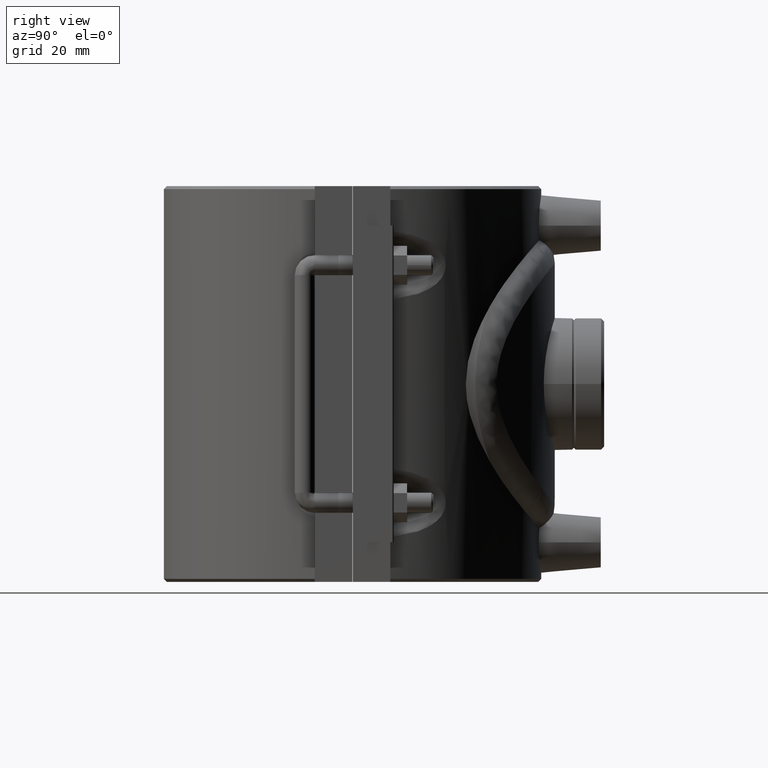
[diagram: clean part render]
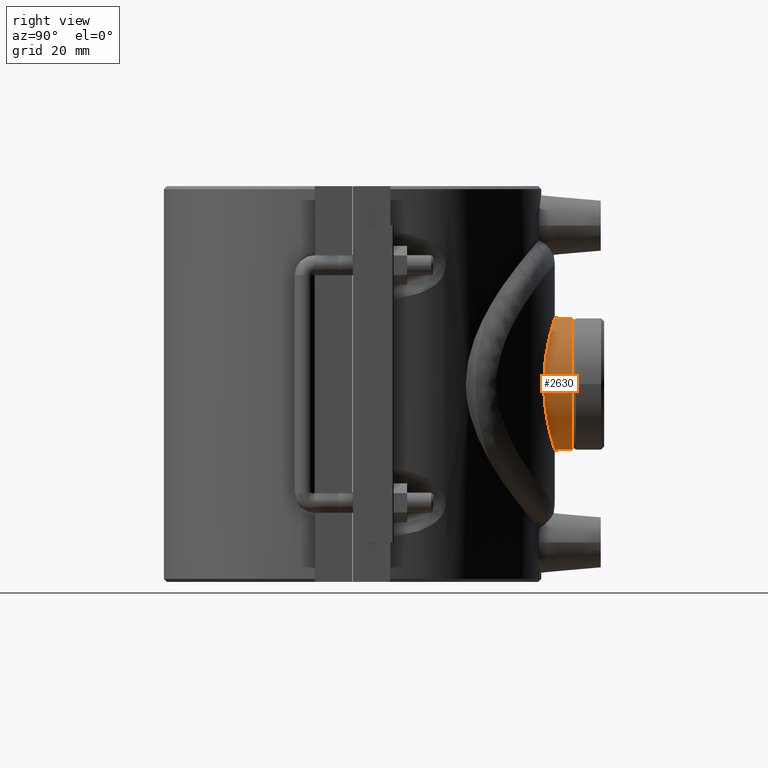
[diagram: same view with one face highlighted and labeled with its STEP entity id]
A machine part, right view. The second image highlights one B-rep face of the part: STEP entity #2630.
In plain terms, the highlighted cylindrical surface (bore or boss wall) has radius 19.6892 mm, axis along (0, -1, 0).
Its self-contained STEP definition (entity closure, byte-faithful):
#88=CYLINDRICAL_SURFACE('',#2851,19.68915);
#137=FACE_BOUND('',#524,.T.);
#210=B_SPLINE_CURVE_WITH_KNOTS('',3,(#5490,#5491,#5492,#5493,#5494,#5495,
#5496,#5497,#5498,#5499,#5500,#5501,#5502,#5503,#5504,#5505,#5506,#5507,
#5508,#5509,#5510,#5511,#5512,#5513,#5514,#5515,#5516,#5517,#5518,#5519,
#5520,#5521,#5522,#5523,#5524,#5525,#5526,#5527,#5528,#5529,#5530,#5531,
#5532,#5533,#5534,#5535,#5536,#5537,#5538,#5539,#5540,#5541,#5542,#5543,
#5544,#5545,#5546,#5547,#5548,#5549,#5550,#5551,#5552,#5553,#5554,#5555),
 .UNSPECIFIED.,.T.,.F.,(4,2,2,2,2,2,2,2,2,2,2,2,2,2,2,2,2,2,2,2,2,2,2,2,
2,2,2,2,2,2,2,2,4),(0.,0.373892604560124,0.747785209120248,1.12167781368037,
1.4955704182405,1.86930408582334,2.24303775340618,2.61677142098903,2.99050508857187,
3.36423875615471,3.73797242373756,4.1117060913204,4.48543975890324,4.85933236346337,
5.23322496802349,5.60711757258362,5.98101017714374,6.35490278170387,6.72879538626399,
7.10268799082411,7.47658059538424,7.85031426296708,8.22404793054993,8.59778159813277,
8.97151526571561,9.34524893329846,9.7189826008813,10.0927162684641,10.466449936047,
10.8403425406071,11.2142351451672,11.5881277497274,11.9620203542875),
 .UNSPECIFIED.);
#331=FACE_OUTER_BOUND('',#523,.T.);
#523=EDGE_LOOP('',(#2271));
#524=EDGE_LOOP('',(#2272));
#1049=CIRCLE('',#2850,19.68915);
#1297=VERTEX_POINT('',#5486);
#1298=VERTEX_POINT('',#5489);
#1645=EDGE_CURVE('',#1297,#1297,#1049,.T.);
#1646=EDGE_CURVE('',#1298,#1298,#210,.T.);
#2271=ORIENTED_EDGE('',*,*,#1646,.F.);
#2272=ORIENTED_EDGE('',*,*,#1645,.F.);
#2630=ADVANCED_FACE('',(#331,#137),#88,.T.);
#2850=AXIS2_PLACEMENT_3D('',#5487,#3439,#3440);
#2851=AXIS2_PLACEMENT_3D('',#5488,#3441,#3442);
#3439=DIRECTION('center_axis',(0.,1.,0.));
#3440=DIRECTION('ref_axis',(-1.,0.,0.));
#3441=DIRECTION('center_axis',(0.,-1.,0.));
#3442=DIRECTION('ref_axis',(1.,0.,0.));
#5486=CARTESIAN_POINT('',(19.68915,65.45,-2.41122545254321E-15));
#5487=CARTESIAN_POINT('Origin',(0.,65.45,0.));
#5488=CARTESIAN_POINT('Origin',(0.,75.,0.));
#5489=CARTESIAN_POINT('',(-19.68915,56.9949767284583,1.77635683940025E-14));
#5490=CARTESIAN_POINT('Ctrl Pts',(-19.68915,56.9949767284583,-5.55111512312578E-16));
#5491=CARTESIAN_POINT('Ctrl Pts',(-19.68915,56.9949767284583,-1.24630868186708));
#5492=CARTESIAN_POINT('Ctrl Pts',(-19.5689100007069,57.0369898415839,-2.53196162237905));
#5493=CARTESIAN_POINT('Ctrl Pts',(-19.066043277251,57.2070488878396,-5.08321375971234));
#5494=CARTESIAN_POINT('Ctrl Pts',(-18.6835598969032,57.3349253157906,-6.34885250417827));
#5495=CARTESIAN_POINT('Ctrl Pts',(-17.6762012422306,57.6534557055359,-8.77127582845449));
#5496=CARTESIAN_POINT('Ctrl Pts',(-17.0505268018416,57.8440209367251,-9.93016443508014));
#5497=CARTESIAN_POINT('Ctrl Pts',(-15.6082151361396,58.2497625963666,-12.0711329339014));
#5498=CARTESIAN_POINT('Ctrl Pts',(-14.7914547875944,58.464525785083,-13.0532081740038));
#5499=CARTESIAN_POINT('Ctrl Pts',(-13.0535776272361,58.8769168937985,-14.7910853343621));
#5500=CARTESIAN_POINT('Ctrl Pts',(-12.0716770470252,59.0893401129538,-15.6078014452203));
#5501=CARTESIAN_POINT('Ctrl Pts',(-9.93060911993242,59.4866245823726,-17.0502743449621));
#5502=CARTESIAN_POINT('Ctrl Pts',(-8.77144628551118,59.6711225206843,-17.6761378698744));
#5503=CARTESIAN_POINT('Ctrl Pts',(-6.34847723008043,59.9773121238302,-18.683708441306));
#5504=CARTESIAN_POINT('Ctrl Pts',(-5.08257524567845,60.099012181773,-19.06621567545));
#5505=CARTESIAN_POINT('Ctrl Pts',(-2.53124282111008,60.2604069529413,-19.5690051125285));
#5506=CARTESIAN_POINT('Ctrl Pts',(-1.24577889194282,60.3,-19.68915));
#5507=CARTESIAN_POINT('Ctrl Pts',(1.24577889194281,60.3,-19.68915));
#5508=CARTESIAN_POINT('Ctrl Pts',(2.53124282111006,60.2604069529414,-19.5690051125285));
#5509=CARTESIAN_POINT('Ctrl Pts',(5.08257524567843,60.099012181773,-19.06621567545));
#5510=CARTESIAN_POINT('Ctrl Pts',(6.34847723008042,59.9773121238302,-18.683708441306));
#5511=CARTESIAN_POINT('Ctrl Pts',(8.77144628551116,59.6711225206843,-17.6761378698744));
#5512=CARTESIAN_POINT('Ctrl Pts',(9.9306091199324,59.4866245823726,-17.0502743449622));
#5513=CARTESIAN_POINT('Ctrl Pts',(12.0716770470252,59.0893401129538,-15.6078014452204));
#5514=CARTESIAN_POINT('Ctrl Pts',(13.0535776272361,58.8769168937985,-14.7910853343622));
#5515=CARTESIAN_POINT('Ctrl Pts',(14.7914547875944,58.464525785083,-13.0532081740039));
#5516=CARTESIAN_POINT('Ctrl Pts',(15.6082151361395,58.2497625963666,-12.0711329339014));
#5517=CARTESIAN_POINT('Ctrl Pts',(17.0505268018416,57.8440209367251,-9.93016443508016));
#5518=CARTESIAN_POINT('Ctrl Pts',(17.6762012422306,57.6534557055359,-8.7712758284545));
#5519=CARTESIAN_POINT('Ctrl Pts',(18.6835598969032,57.3349253157906,-6.34885250417828));
#5520=CARTESIAN_POINT('Ctrl Pts',(19.066043277251,57.2070488878396,-5.08321375971235));
#5521=CARTESIAN_POINT('Ctrl Pts',(19.5689100007069,57.0369898415839,-2.53196162237905));
#5522=CARTESIAN_POINT('Ctrl Pts',(19.68915,56.9949767284583,-1.24630868186708));
#5523=CARTESIAN_POINT('Ctrl Pts',(19.68915,56.9949767284583,1.24630868186708));
#5524=CARTESIAN_POINT('Ctrl Pts',(19.5689100007069,57.0369898415839,2.53196162237905));
#5525=CARTESIAN_POINT('Ctrl Pts',(19.066043277251,57.2070488878396,5.08321375971234));
#5526=CARTESIAN_POINT('Ctrl Pts',(18.6835598969032,57.3349253157906,6.34885250417826));
#5527=CARTESIAN_POINT('Ctrl Pts',(17.6762012422306,57.6534557055359,8.77127582845448));
#5528=CARTESIAN_POINT('Ctrl Pts',(17.0505268018416,57.8440209367251,9.93016443508013));
#5529=CARTESIAN_POINT('Ctrl Pts',(15.6082151361396,58.2497625963666,12.0711329339013));
#5530=CARTESIAN_POINT('Ctrl Pts',(14.7914547875944,58.464525785083,13.0532081740038));
#5531=CARTESIAN_POINT('Ctrl Pts',(13.0535776272361,58.8769168937985,14.7910853343621));
#5532=CARTESIAN_POINT('Ctrl Pts',(12.0716770470253,59.0893401129538,15.6078014452203));
#5533=CARTESIAN_POINT('Ctrl Pts',(9.93060911993243,59.4866245823726,17.0502743449621));
#5534=CARTESIAN_POINT('Ctrl Pts',(8.77144628551119,59.6711225206843,17.6761378698744));
#5535=CARTESIAN_POINT('Ctrl Pts',(6.34847723008043,59.9773121238302,18.683708441306));
#5536=CARTESIAN_POINT('Ctrl Pts',(5.08257524567845,60.099012181773,19.06621567545));
#5537=CARTESIAN_POINT('Ctrl Pts',(2.53124282111008,60.2604069529413,19.5690051125285));
#5538=CARTESIAN_POINT('Ctrl Pts',(1.24577889194282,60.3,19.68915));
#5539=CARTESIAN_POINT('Ctrl Pts',(-1.24577889194281,60.3,19.68915));
#5540=CARTESIAN_POINT('Ctrl Pts',(-2.53124282111007,60.2604069529413,19.5690051125285));
#5541=CARTESIAN_POINT('Ctrl Pts',(-5.08257524567844,60.099012181773,19.06621567545));
#5542=CARTESIAN_POINT('Ctrl Pts',(-6.34847723008043,59.9773121238302,18.683708441306));
#5543=CARTESIAN_POINT('Ctrl Pts',(-8.77144628551117,59.6711225206843,17.6761378698744));
#5544=CARTESIAN_POINT('Ctrl Pts',(-9.93060911993241,59.4866245823726,17.0502743449622));
#5545=CARTESIAN_POINT('Ctrl Pts',(-12.0716770470252,59.0893401129538,15.6078014452204));
#5546=CARTESIAN_POINT('Ctrl Pts',(-13.0535776272361,58.8769168937985,14.7910853343622));
#5547=CARTESIAN_POINT('Ctrl Pts',(-14.7914547875944,58.464525785083,13.0532081740039));
#5548=CARTESIAN_POINT('Ctrl Pts',(-15.6082151361395,58.2497625963666,12.0711329339014));
#5549=CARTESIAN_POINT('Ctrl Pts',(-17.0505268018416,57.8440209367251,9.93016443508016));
#5550=CARTESIAN_POINT('Ctrl Pts',(-17.6762012422306,57.6534557055359,8.7712758284545));
#5551=CARTESIAN_POINT('Ctrl Pts',(-18.6835598969032,57.3349253157906,6.34885250417828));
#5552=CARTESIAN_POINT('Ctrl Pts',(-19.066043277251,57.2070488878396,5.08321375971235));
#5553=CARTESIAN_POINT('Ctrl Pts',(-19.5689100007069,57.0369898415839,2.53196162237905));
#5554=CARTESIAN_POINT('Ctrl Pts',(-19.68915,56.9949767284583,1.24630868186708));
#5555=CARTESIAN_POINT('Ctrl Pts',(-19.68915,56.9949767284583,8.32667268468867E-16));